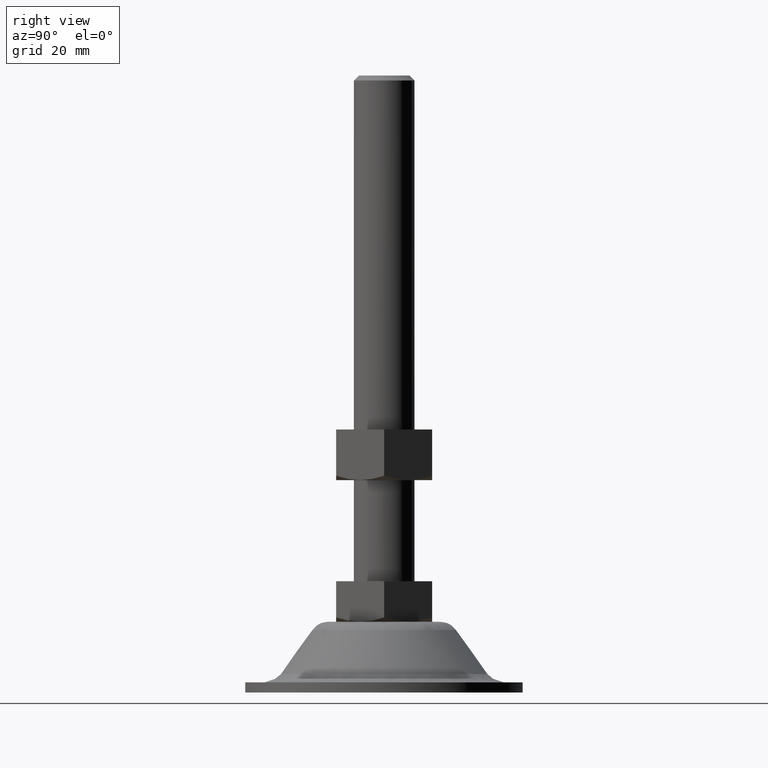
[diagram: clean part render]
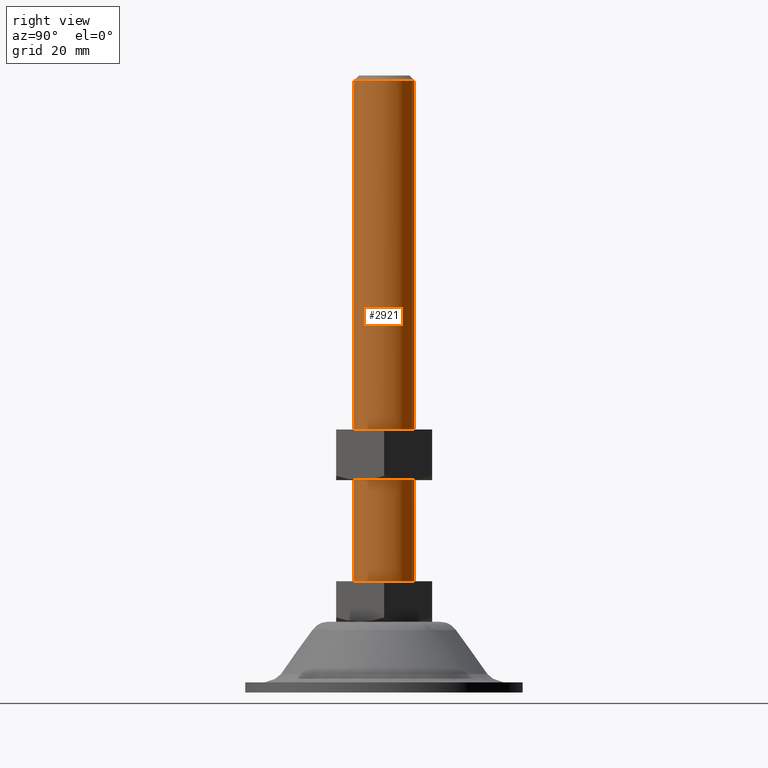
[diagram: same view with one face highlighted and labeled with its STEP entity id]
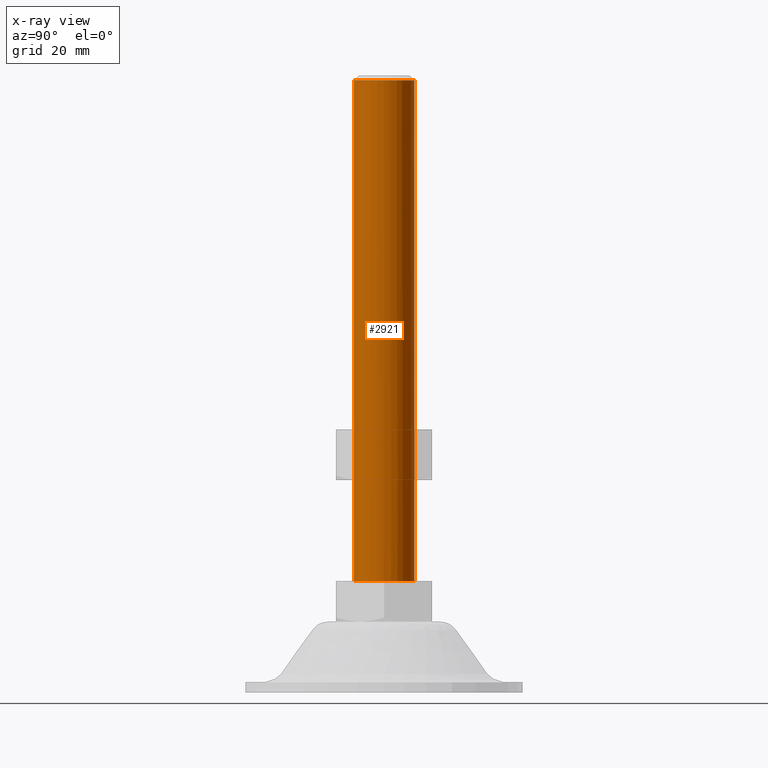
[diagram: x-ray of the same camera — body ghosted, the highlighted face saturated]
A machine part, right view. The second image highlights one B-rep face of the part: STEP entity #2921.
The next image is the same camera in x-ray: the body ghosted, the highlighted face saturated — about 0% of this face is hidden behind the body in this view.
In plain terms, the highlighted face is a freeform B-spline surface patch.
Its self-contained STEP definition (entity closure, byte-faithful):
#2616=CARTESIAN_POINT('',(2.425292592289191,-5.487982857314432,120.999999999967500));
#2617=VERTEX_POINT('',#2616);
#2618=CARTESIAN_POINT('',(-0.744768012699565,-5.953597282925637,121.0));
#2619=VERTEX_POINT('',#2618);
#2620=CARTESIAN_POINT('',(2.425292592289191,-5.487982857314432,120.999999999967530));
#2621=CARTESIAN_POINT('',(1.266693703909645,-5.999999999999999,121.000000000000010));
#2622=CARTESIAN_POINT('',(0.0,-6.0,121.0));
#2623=CARTESIAN_POINT('',(-0.373829565424138,-6.000000000000001,120.999999999999970));
#2624=CARTESIAN_POINT('',(-0.744768012699565,-5.953597282925638,120.999999999999970));
#2632=(BOUNDED_CURVE()B_SPLINE_CURVE(2,(#2620,#2621,#2622,#2623,#2624),.UNSPECIFIED.,.F.,.U.)B_SPLINE_CURVE_WITH_KNOTS((3,2,3),(0.181361578440084,0.250000000000000,0.271473928983198),.UNSPECIFIED.)CURVE()GEOMETRIC_REPRESENTATION_ITEM()RATIONAL_B_SPLINE_CURVE((0.883326595730914,0.919585087100166,1.0,0.974841727278158,0.954005430250466))REPRESENTATION_ITEM(''));
#2633=EDGE_CURVE('',#2617,#2619,#2632,.T.);
#2676=CARTESIAN_POINT('',(0.052359213150836,5.999771538383499,121.000000000000100));
#2677=VERTEX_POINT('',#2676);
#2734=CARTESIAN_POINT('',(6.0,0.0,121.0));
#2735=VERTEX_POINT('',#2734);
#2736=CARTESIAN_POINT('',(6.0,0.0,121.0));
#2737=CARTESIAN_POINT('',(6.000000000000001,-3.908220015006602,121.000000000000010));
#2738=CARTESIAN_POINT('',(2.425292592289192,-5.487982857314432,120.999999999967510));
#2746=(BOUNDED_CURVE()B_SPLINE_CURVE(2,(#2736,#2737,#2738),.UNSPECIFIED.,.F.,.U.)B_SPLINE_CURVE_WITH_KNOTS((3,3),(0.0,0.181361578440084),.UNSPECIFIED.)CURVE()GEOMETRIC_REPRESENTATION_ITEM()RATIONAL_B_SPLINE_CURVE((1.0,0.787521694086382,0.883326595730914))REPRESENTATION_ITEM(''));
#2747=EDGE_CURVE('',#2735,#2617,#2746,.T.);
#2749=CARTESIAN_POINT('',(0.052359213150836,5.999771538383499,121.000000000000110));
#2750=CARTESIAN_POINT('',(6.0,5.947867262933030,121.000000000000010));
#2751=CARTESIAN_POINT('',(6.0,0.0,121.0));
#2759=(BOUNDED_CURVE()B_SPLINE_CURVE(2,(#2749,#2750,#2751),.UNSPECIFIED.,.F.,.U.)B_SPLINE_CURVE_WITH_KNOTS((3,3),(0.751539894353846,1.0),.UNSPECIFIED.)CURVE()GEOMETRIC_REPRESENTATION_ITEM()RATIONAL_B_SPLINE_CURVE((0.996414028056761,0.708910879642270,1.0))REPRESENTATION_ITEM(''));
#2760=EDGE_CURVE('',#2677,#2735,#2759,.T.);
#2815=CARTESIAN_POINT('',(0.052359213282995,5.999771538382472,22.0));
#2816=VERTEX_POINT('',#2815);
#2817=CARTESIAN_POINT('',(0.052359213150836,5.999771538383499,121.000000000000100));
#2818=CARTESIAN_POINT('',(0.052359213282995,5.999771538382472,22.0));
#2819=QUASI_UNIFORM_CURVE('',1,(#2817,#2818),.UNSPECIFIED.,.F.,.U.);
#2820=EDGE_CURVE('',#2677,#2816,#2819,.T.);
#2839=CARTESIAN_POINT('',(-0.744768012615254,-5.953597282936185,22.0));
#2840=VERTEX_POINT('',#2839);
#2854=CARTESIAN_POINT('',(-0.744768012699565,-5.953597282925637,121.0));
#2855=CARTESIAN_POINT('',(-0.744768012615254,-5.953597282936185,22.0));
#2856=QUASI_UNIFORM_CURVE('',1,(#2854,#2855),.UNSPECIFIED.,.F.,.U.);
#2857=EDGE_CURVE('',#2619,#2840,#2856,.T.);
#2862=CARTESIAN_POINT('',(0.052359212990243,5.999771538385026,123.474999999999990));
#2863=CARTESIAN_POINT('',(6.052130751375269,5.947412325394783,123.475000000000020));
#2864=CARTESIAN_POINT('',(5.999771538385026,-0.052359212990243,123.474999999999990));
#2865=CARTESIAN_POINT('',(5.947412325394783,-6.052130751375269,123.475000000000020));
#2866=CARTESIAN_POINT('',(-0.052359212990243,-5.999771538385026,123.474999999999990));
#2867=CARTESIAN_POINT('',(-0.399900953749042,-5.996738587561654,123.474999999999980));
#2868=CARTESIAN_POINT('',(-0.744768012478976,-5.953597282953231,123.474999999999970));
#2869=CARTESIAN_POINT('',(0.052359212990243,5.999771538385026,19.463125000000009));
#2870=CARTESIAN_POINT('',(6.052130751375269,5.947412325394783,19.463125000000009));
#2871=CARTESIAN_POINT('',(5.999771538385026,-0.052359212990243,19.463125000000009));
#2872=CARTESIAN_POINT('',(5.947412325394783,-6.052130751375269,19.463125000000009));
#2873=CARTESIAN_POINT('',(-0.052359212990243,-5.999771538385026,19.463125000000009));
#2874=CARTESIAN_POINT('',(-0.399900953749042,-5.996738587561654,19.463125000000005));
#2875=CARTESIAN_POINT('',(-0.744768012478976,-5.953597282953231,19.463125000000005));
#2883=(BOUNDED_SURFACE()B_SPLINE_SURFACE(2,1,((#2862,#2869),(#2863,#2870),(#2864,#2871),(#2865,#2872),(#2866,#2873),(#2867,#2874),(#2868,#2875)),.UNSPECIFIED.,.F.,.F.,.U.)B_SPLINE_SURFACE_WITH_KNOTS((3,2,2,3),(2,2),(0.0,9.941125496954278,19.882250993908560,20.677541033664902),(0.0,104.011875000000000),.UNSPECIFIED.)GEOMETRIC_REPRESENTATION_ITEM()RATIONAL_B_SPLINE_SURFACE(((1.0,1.0),(0.707106781186548,0.707106781186548),(1.0,1.0),(0.707106781186548,0.707106781186548),(1.0,1.0),(0.976568542494924,0.976568542494924),(0.956886118190660,0.956886118190660)))REPRESENTATION_ITEM('')SURFACE());
#2884=ORIENTED_EDGE('',*,*,#2747,.T.);
#2885=ORIENTED_EDGE('',*,*,#2633,.T.);
#2886=ORIENTED_EDGE('',*,*,#2857,.T.);
#2887=CARTESIAN_POINT('',(6.0,0.0,22.0));
#2888=VERTEX_POINT('',#2887);
#2889=CARTESIAN_POINT('',(-0.744768012615254,-5.953597282936185,21.999999999999996));
#2890=CARTESIAN_POINT('',(-0.373829565338839,-6.0,21.999999999999996));
#2891=CARTESIAN_POINT('',(0.0,-6.0,22.0));
#2892=CARTESIAN_POINT('',(6.0,-6.0,22.000000000000007));
#2893=CARTESIAN_POINT('',(6.0,0.0,22.0));
#2901=(BOUNDED_CURVE()B_SPLINE_CURVE(2,(#2889,#2890,#2891,#2892,#2893),.UNSPECIFIED.,.F.,.U.)B_SPLINE_CURVE_WITH_KNOTS((3,2,3),(0.728526071021578,0.750000000000000,1.0),.UNSPECIFIED.)CURVE()GEOMETRIC_REPRESENTATION_ITEM()RATIONAL_B_SPLINE_CURVE((0.954005430259736,0.974841727283754,1.0,0.707106781186548,1.0))REPRESENTATION_ITEM(''));
#2902=EDGE_CURVE('',#2840,#2888,#2901,.T.);
#2903=ORIENTED_EDGE('',*,*,#2902,.T.);
#2904=CARTESIAN_POINT('',(6.0,0.0,22.0));
#2905=CARTESIAN_POINT('',(6.0,5.947867262989411,22.000000000000004));
#2906=CARTESIAN_POINT('',(0.052359213282995,5.999771538382472,22.0));
#2914=(BOUNDED_CURVE()B_SPLINE_CURVE(2,(#2904,#2905,#2906),.UNSPECIFIED.,.F.,.U.)B_SPLINE_CURVE_WITH_KNOTS((3,3),(0.0,0.248460105647824),.UNSPECIFIED.)CURVE()GEOMETRIC_REPRESENTATION_ITEM()RATIONAL_B_SPLINE_CURVE((1.0,0.708910879640314,0.996414028060625))REPRESENTATION_ITEM(''));
#2915=EDGE_CURVE('',#2888,#2816,#2914,.T.);
#2916=ORIENTED_EDGE('',*,*,#2915,.T.);
#2917=ORIENTED_EDGE('',*,*,#2820,.F.);
#2918=ORIENTED_EDGE('',*,*,#2760,.T.);
#2919=EDGE_LOOP('',(#2884,#2885,#2886,#2903,#2916,#2917,#2918));
#2920=FACE_OUTER_BOUND('',#2919,.T.);
#2921=ADVANCED_FACE('',(#2920),#2883,.T.);